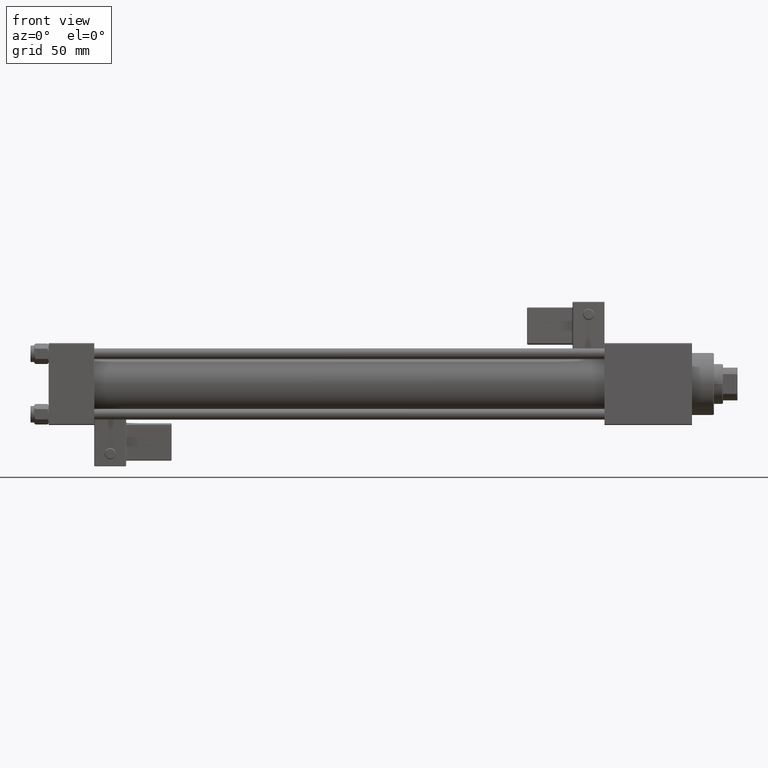
[diagram: clean part render]
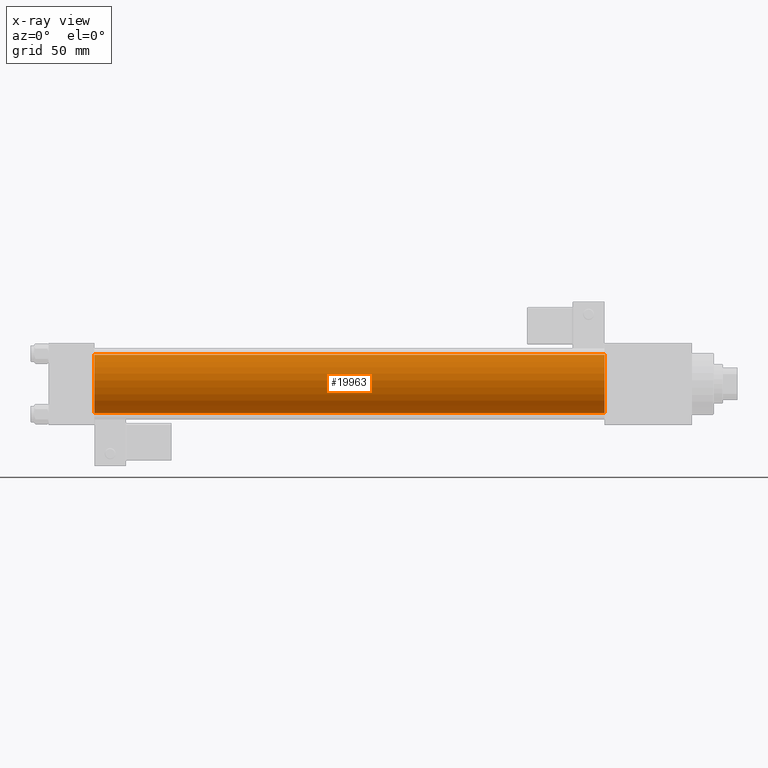
[diagram: x-ray — body ghosted, one internal face saturated and labeled with its STEP entity id]
A machine part, front view, then the same camera in x-ray: the body is ghosted and one INTERNAL B-rep face — a face not visible from any outside direction — is saturated and labeled: STEP entity #19963.
In plain terms, the highlighted cylindrical surface (edge-blend (fillet) strip) has radius 16 mm, axis along (-1, -0, -0).
Its self-contained STEP definition (entity closure, byte-faithful):
#1287 = DIRECTION ( 'NONE',  ( 0.000000000000000000, 0.000000000000000000, 1.000000000000000000 ) ) ;
#3868 = ORIENTED_EDGE ( 'NONE', *, *, #26919, .F. ) ;
#4808 = EDGE_CURVE ( 'NONE', #33114, #46067, #14898, .T. ) ;
#5576 = CIRCLE ( 'NONE', #42058, 16.00000000000000000 ) ;
#5820 = CARTESIAN_POINT ( 'NONE',  ( 305.0000000000000568, -2.602085213965210642E-15, 0.000000000000000000 ) ) ;
#7329 = DIRECTION ( 'NONE',  ( -1.000000000000000000, -0.000000000000000000, -0.000000000000000000 ) ) ;
#7381 = DIRECTION ( 'NONE',  ( -1.000000000000000000, -0.000000000000000000, -0.000000000000000000 ) ) ;
#9331 = CARTESIAN_POINT ( 'NONE',  ( 305.0000000000000568, -6.426503353294456087E-16, -16.00000000000000000 ) ) ;
#12975 = DIRECTION ( 'NONE',  ( 1.000000000000000000, 0.000000000000000000, 0.000000000000000000 ) ) ;
#13002 = CARTESIAN_POINT ( 'NONE',  ( 305.0000000000000568, -2.602085213965210642E-15, 16.00000000000000000 ) ) ;
#13420 = LINE ( 'NONE', #9331, #23383 ) ;
#14898 = CIRCLE ( 'NONE', #27072, 16.00000000000000000 ) ;
#14912 = VERTEX_POINT ( 'NONE', #53011 ) ;
#16555 = CARTESIAN_POINT ( 'NONE',  ( 305.0000000000000568, -6.426503353294456087E-16, -16.00000000000000000 ) ) ;
#19963 = ADVANCED_FACE ( 'NONE', ( #26581 ), #43127, .F. ) ;
#22262 = CARTESIAN_POINT ( 'NONE',  ( 25.00000000000000000, -6.426503353294456087E-16, -16.00000000000000000 ) ) ;
#22482 = DIRECTION ( 'NONE',  ( -1.000000000000000000, -0.000000000000000000, -0.000000000000000000 ) ) ;
#23383 = VECTOR ( 'NONE', #7329, 1000.000000000000000 ) ;
#25948 = EDGE_LOOP ( 'NONE', ( #28565, #26107, #43997, #3868 ) ) ;
#26107 = ORIENTED_EDGE ( 'NONE', *, *, #28960, .T. ) ;
#26581 = FACE_OUTER_BOUND ( 'NONE', #25948, .T. ) ;
#26919 = EDGE_CURVE ( 'NONE', #33114, #14912, #35948, .T. ) ;
#27072 = AXIS2_PLACEMENT_3D ( 'NONE', #5820, #12975, #37728 ) ;
#27672 = VECTOR ( 'NONE', #7381, 1000.000000000000000 ) ;
#28565 = ORIENTED_EDGE ( 'NONE', *, *, #4808, .T. ) ;
#28960 = EDGE_CURVE ( 'NONE', #46067, #41611, #13420, .T. ) ;
#30467 = DIRECTION ( 'NONE',  ( 1.000000000000000000, 0.000000000000000000, 0.000000000000000000 ) ) ;
#33114 = VERTEX_POINT ( 'NONE', #13002 ) ;
#35591 = DIRECTION ( 'NONE',  ( 0.000000000000000000, 0.000000000000000000, -1.000000000000000000 ) ) ;
#35948 = LINE ( 'NONE', #37026, #27672 ) ;
#37026 = CARTESIAN_POINT ( 'NONE',  ( 305.0000000000000568, -2.602085213965210642E-15, 16.00000000000000000 ) ) ;
#37728 = DIRECTION ( 'NONE',  ( 0.000000000000000000, 0.000000000000000000, -1.000000000000000000 ) ) ;
#41611 = VERTEX_POINT ( 'NONE', #22262 ) ;
#42058 = AXIS2_PLACEMENT_3D ( 'NONE', #47802, #30467, #35591 ) ;
#43127 = CYLINDRICAL_SURFACE ( 'NONE', #43989, 16.00000000000000000 ) ;
#43989 = AXIS2_PLACEMENT_3D ( 'NONE', #51559, #22482, #1287 ) ;
#43997 = ORIENTED_EDGE ( 'NONE', *, *, #47440, .F. ) ;
#46067 = VERTEX_POINT ( 'NONE', #16555 ) ;
#47440 = EDGE_CURVE ( 'NONE', #14912, #41611, #5576, .T. ) ;
#47802 = CARTESIAN_POINT ( 'NONE',  ( 25.00000000000000000, -2.602085213965210642E-15, 0.000000000000000000 ) ) ;
#51559 = CARTESIAN_POINT ( 'NONE',  ( 305.0000000000000568, -2.602085213965210642E-15, 0.000000000000000000 ) ) ;
#53011 = CARTESIAN_POINT ( 'NONE',  ( 25.00000000000000000, -2.602085213965210642E-15, 16.00000000000000000 ) ) ;